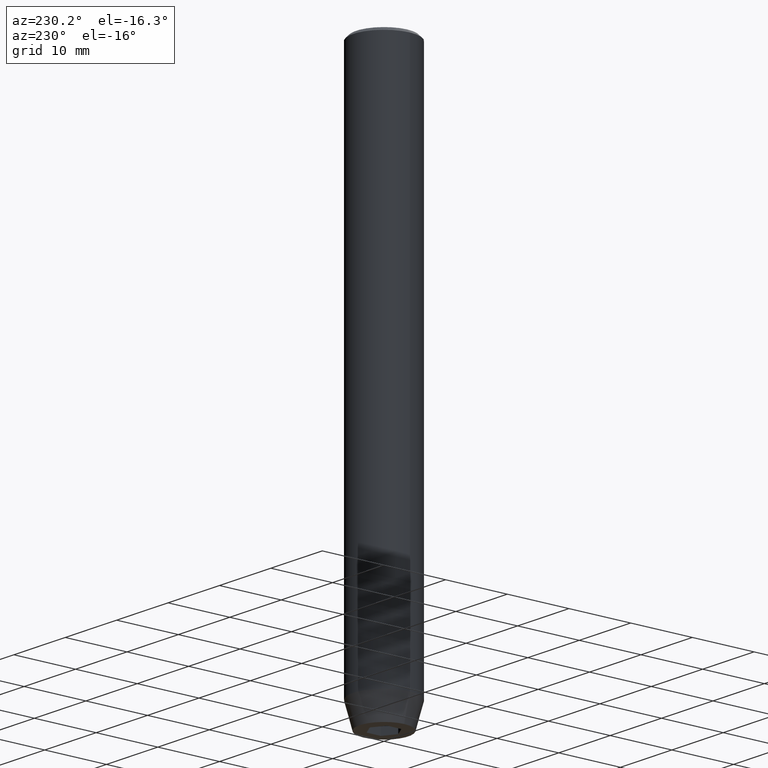
[diagram: clean part render]
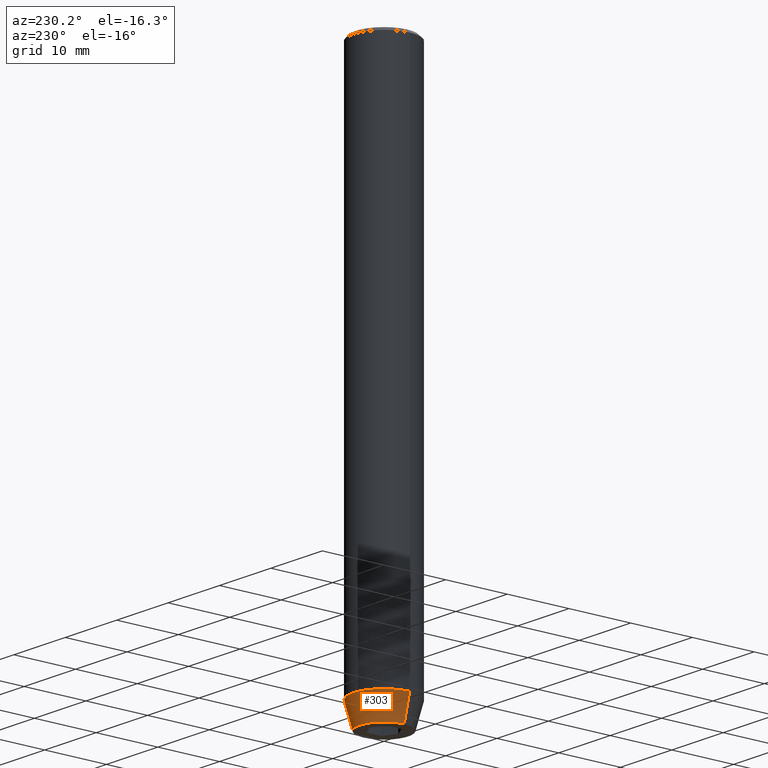
[diagram: same view with one face highlighted and labeled with its STEP entity id]
A machine part, auxiliary view. The second image highlights one B-rep face of the part: STEP entity #303.
In plain terms, the highlighted conical surface has half-angle 15 deg.
Its self-contained STEP definition (entity closure, byte-faithful):
#12 = DIRECTION ( 'NONE',  ( 1.000000000000000000, 0.000000000000000000, 0.000000000000000000 ) ) ;
#29 = FACE_OUTER_BOUND ( 'NONE', #119, .T. ) ;
#32 = CARTESIAN_POINT ( 'NONE',  ( -5.000000000000000000, 6.123233995736766282E-16, -86.00000000000000000 ) ) ;
#41 = DIRECTION ( 'NONE',  ( -0.2588190451025210725, 3.169619151431769255E-17, 0.9659258262890680902 ) ) ;
#42 = CARTESIAN_POINT ( 'NONE',  ( -3.928203230275506996, 5.466947754046979141E-16, -90.00000000000000000 ) ) ;
#74 = CIRCLE ( 'NONE', #335, 5.000000000000000000 ) ;
#80 = DIRECTION ( 'NONE',  ( 1.000000000000000000, 0.000000000000000000, 0.000000000000000000 ) ) ;
#101 = LINE ( 'NONE', #283, #260 ) ;
#119 = EDGE_LOOP ( 'NONE', ( #196, #557, #566, #365 ) ) ;
#140 = VERTEX_POINT ( 'NONE', #317 ) ;
#150 = DIRECTION ( 'NONE',  ( 1.000000000000000000, 0.000000000000000000, 0.000000000000000000 ) ) ;
#153 = EDGE_CURVE ( 'NONE', #140, #167, #74, .T. ) ;
#157 = VERTEX_POINT ( 'NONE', #363 ) ;
#167 = VERTEX_POINT ( 'NONE', #416 ) ;
#182 = DIRECTION ( 'NONE',  ( -0.000000000000000000, -0.000000000000000000, 1.000000000000000000 ) ) ;
#186 = CIRCLE ( 'NONE', #430, 3.928203230275506996 ) ;
#195 = AXIS2_PLACEMENT_3D ( 'NONE', #438, #523, #80 ) ;
#196 = ORIENTED_EDGE ( 'NONE', *, *, #497, .T. ) ;
#206 = DIRECTION ( 'NONE',  ( -0.000000000000000000, -0.000000000000000000, 1.000000000000000000 ) ) ;
#247 = EDGE_CURVE ( 'NONE', #157, #140, #101, .T. ) ;
#260 = VECTOR ( 'NONE', #463, 1000.000000000000114 ) ;
#283 = CARTESIAN_POINT ( 'NONE',  ( 5.000000000000000000, 0.000000000000000000, -86.00000000000000000 ) ) ;
#303 = ADVANCED_FACE ( 'NONE', ( #29 ), #321, .T. ) ;
#317 = CARTESIAN_POINT ( 'NONE',  ( 5.000000000000000000, 0.000000000000000000, -86.00000000000000000 ) ) ;
#321 = CONICAL_SURFACE ( 'NONE', #195, 5.000000000000000000, 0.2617993877991497964 ) ;
#328 = CARTESIAN_POINT ( 'NONE',  ( 0.000000000000000000, 0.000000000000000000, -86.00000000000000000 ) ) ;
#335 = AXIS2_PLACEMENT_3D ( 'NONE', #328, #182, #12 ) ;
#363 = CARTESIAN_POINT ( 'NONE',  ( 3.928203230275506996, 0.000000000000000000, -90.00000000000000000 ) ) ;
#365 = ORIENTED_EDGE ( 'NONE', *, *, #247, .F. ) ;
#385 = VERTEX_POINT ( 'NONE', #42 ) ;
#416 = CARTESIAN_POINT ( 'NONE',  ( -5.000000000000000000, 6.123233995736766282E-16, -86.00000000000000000 ) ) ;
#428 = CARTESIAN_POINT ( 'NONE',  ( 0.000000000000000000, 0.000000000000000000, -90.00000000000000000 ) ) ;
#430 = AXIS2_PLACEMENT_3D ( 'NONE', #428, #206, #150 ) ;
#438 = CARTESIAN_POINT ( 'NONE',  ( 0.000000000000000000, 0.000000000000000000, -86.00000000000000000 ) ) ;
#463 = DIRECTION ( 'NONE',  ( 0.2588190451025210725, 0.000000000000000000, 0.9659258262890680902 ) ) ;
#497 = EDGE_CURVE ( 'NONE', #157, #385, #186, .T. ) ;
#523 = DIRECTION ( 'NONE',  ( -0.000000000000000000, -0.000000000000000000, 1.000000000000000000 ) ) ;
#556 = EDGE_CURVE ( 'NONE', #385, #167, #579, .T. ) ;
#557 = ORIENTED_EDGE ( 'NONE', *, *, #556, .T. ) ;
#565 = VECTOR ( 'NONE', #41, 1000.000000000000114 ) ;
#566 = ORIENTED_EDGE ( 'NONE', *, *, #153, .F. ) ;
#579 = LINE ( 'NONE', #32, #565 ) ;